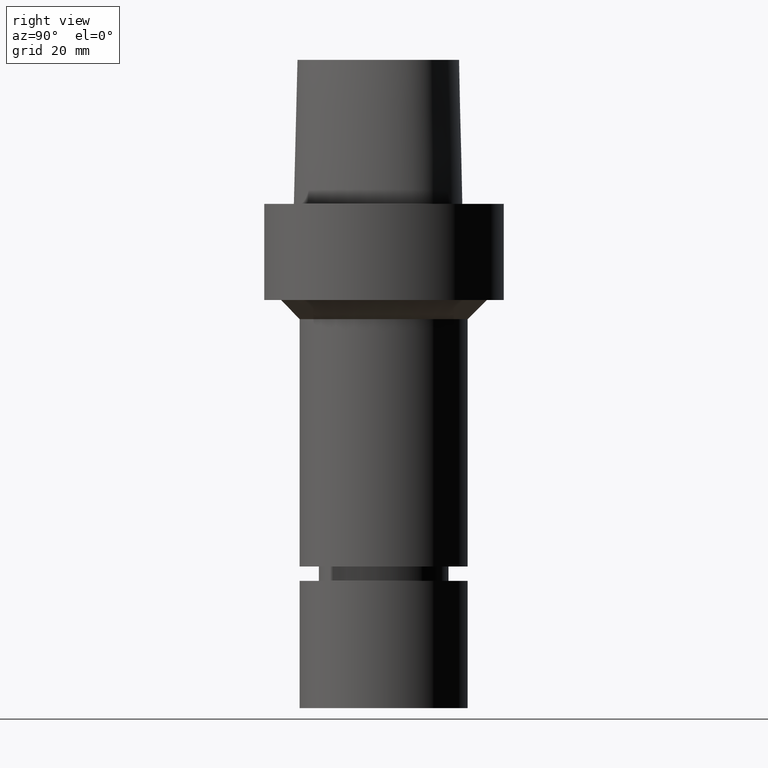
[diagram: clean part render]
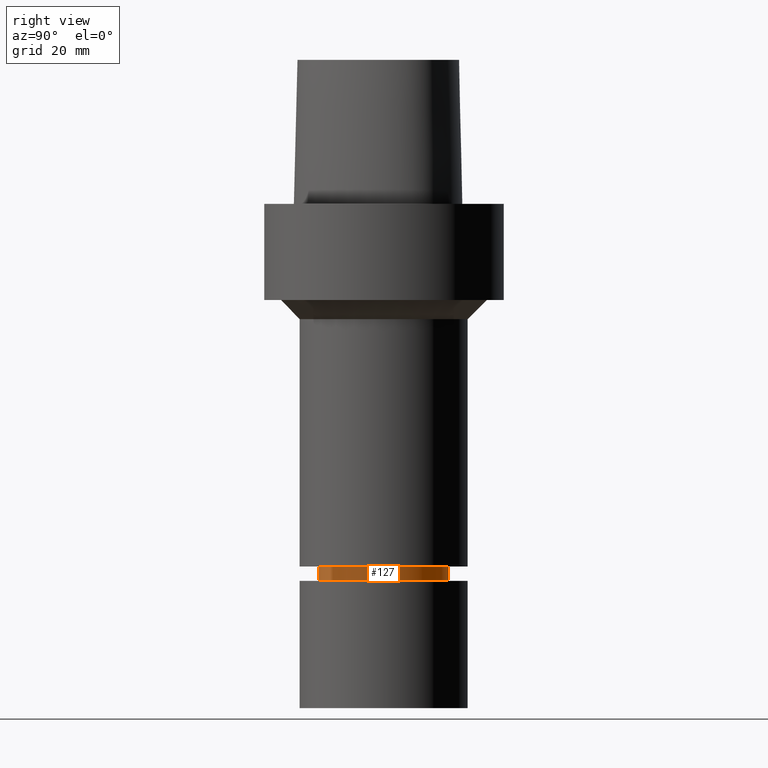
[diagram: same view with one face highlighted and labeled with its STEP entity id]
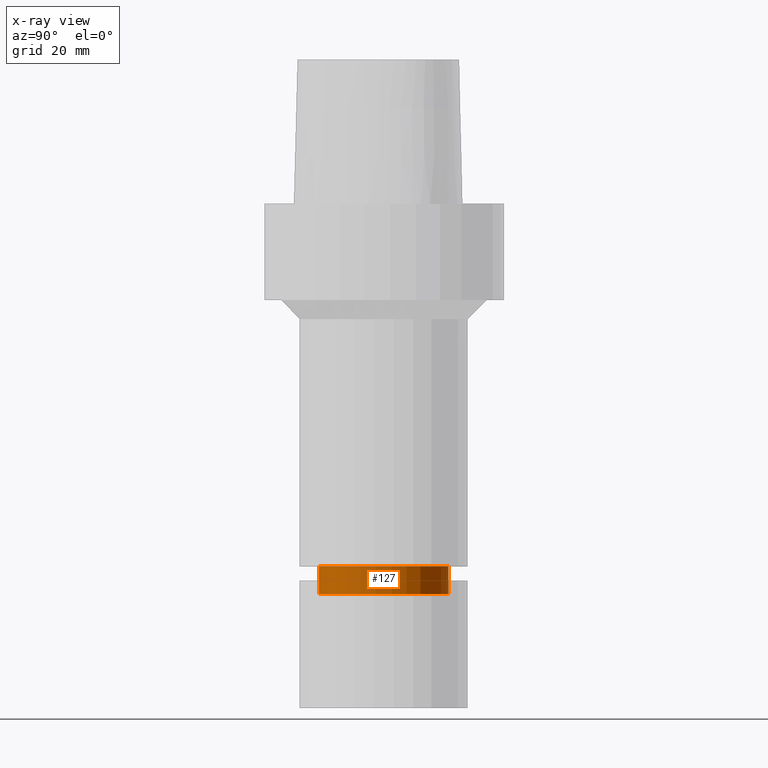
[diagram: x-ray of the same camera — body ghosted, the highlighted face saturated]
A machine part, right view. The second image highlights one B-rep face of the part: STEP entity #127.
The next image is the same camera in x-ray: the body ghosted, the highlighted face saturated — about 0% of this face is hidden behind the body in this view.
In plain terms, the highlighted cylindrical surface (bore or boss wall) has radius 13.5 mm, axis along (0, 0, -1).
Its self-contained STEP definition (entity closure, byte-faithful):
#88=EDGE_CURVE('Unnamed[1]',#202,#202,#203,.T.);
#94=EDGE_CURVE('Unnamed[1]',#211,#211,#212,.T.);
#127=ADVANCED_FACE('Unnamed[1]',(#261,#262),#263,.T.);
#202=VERTEX_POINT('',#874);
#203=CIRCLE('',#875,13.4999999999908);
#211=VERTEX_POINT('',#886);
#212=CIRCLE('',#887,13.5000000000005);
#261=FACE_BOUND('',#950,.T.);
#262=FACE_BOUND('',#951,.T.);
#263=CYLINDRICAL_SURFACE('',#952,13.4999999999956);
#874=CARTESIAN_POINT('',(4.62304166678125E-015,13.4999999999908,-75.4999999999998));
#875=AXIS2_PLACEMENT_3D('',#1021,#1022,#1023);
#886=CARTESIAN_POINT('',(4.97955624228199E-015,13.5000000000005,-81.3223248654052));
#887=AXIS2_PLACEMENT_3D('',#1030,#1031,#1032);
#950=EDGE_LOOP('',(#1083));
#951=EDGE_LOOP('',(#1084));
#952=AXIS2_PLACEMENT_3D('',#1085,#1086,#1087);
#1021=CARTESIAN_POINT('',(4.62304166678125E-015,9.24608333356249E-015,-75.4999999999998));
#1022=DIRECTION('',(6.12323399573677E-017,1.22464679914735E-016,-1.0));
#1023=DIRECTION('',(-1.23259516440783E-032,1.0,1.22464679914735E-016));
#1030=CARTESIAN_POINT('',(4.97955624228199E-015,9.95911248456397E-015,-81.3223248654052));
#1031=DIRECTION('',(6.12323399573677E-017,1.22464679914735E-016,-1.0));
#1032=DIRECTION('',(-1.23259516440783E-032,1.0,1.22464679914735E-016));
#1083=ORIENTED_EDGE('',*,*,#94,.F.);
#1084=ORIENTED_EDGE('',*,*,#88,.T.);
#1085=CARTESIAN_POINT('',(4.80129895453162E-015,9.60259790906323E-015,-78.4111624327025));
#1086=DIRECTION('',(6.12323399573677E-017,1.22464679914735E-016,-1.0));
#1087=DIRECTION('',(-1.23259516440783E-032,1.0,1.22464679914735E-016));